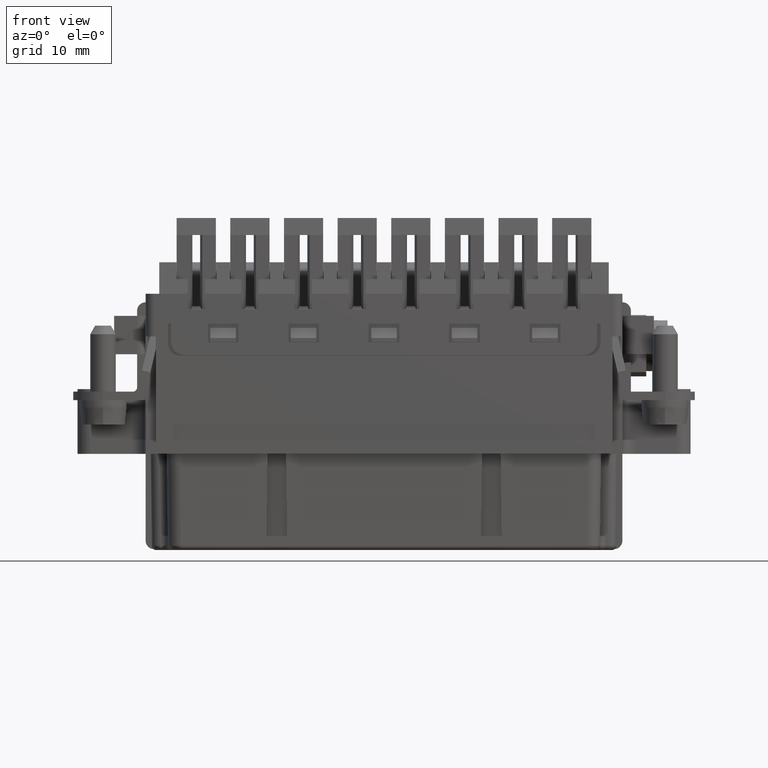
[diagram: clean part render]
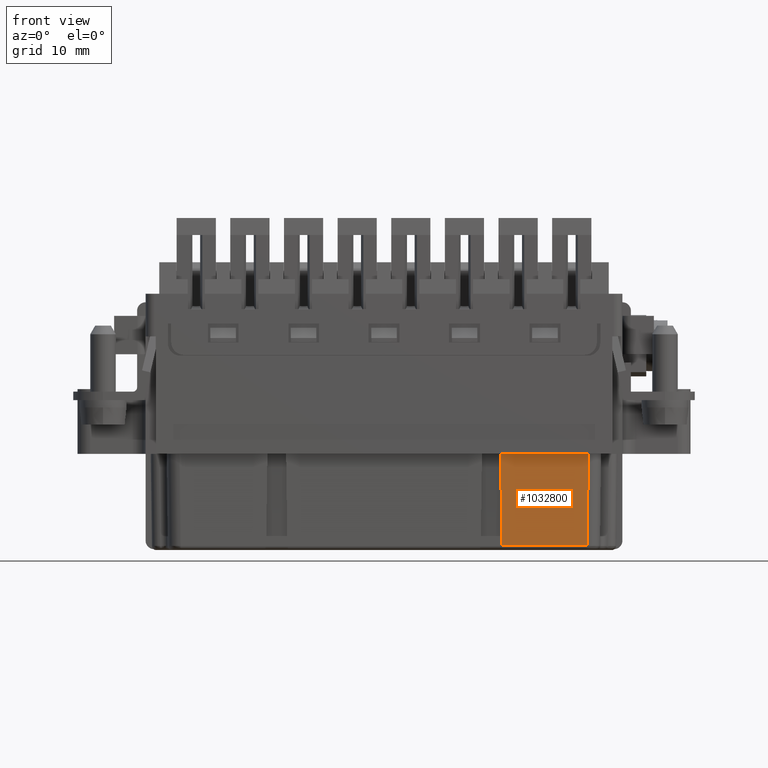
[diagram: same view with one face highlighted and labeled with its STEP entity id]
A machine part, front view. The second image highlights one B-rep face of the part: STEP entity #1032800.
In plain terms, the highlighted planar face has unit normal (0, -0.9999, -0.0131).
Its self-contained STEP definition (entity closure, byte-faithful):
#299760=CARTESIAN_POINT('',(113.245780508494,44.7836120000009,-7.6));
#299770=VERTEX_POINT('',#299760);
#299800=CARTESIAN_POINT('',(0.,44.7836120000009,-7.6));
#299810=DIRECTION('',(-1.,0.,0.));
#299820=VECTOR('',#299810,1.);
#299830=LINE('',#299800,#299820);
#299840=CARTESIAN_POINT('',(102.945652,44.7836120000009,-7.6));
#299850=VERTEX_POINT('',#299840);
#299860=EDGE_CURVE('',#299770,#299850,#299830,.T.);
#1022530=CARTESIAN_POINT('',(25.3819399999999,44.7836120000009,
-7.59999999999998));
#1022540=DIRECTION('',(0.,-0.999914327574007,-0.0130895955713444));
#1022550=DIRECTION('',(1.,0.,0.));
#1022560=AXIS2_PLACEMENT_3D('',#1022530,#1022540,#1022550);
#1022570=PLANE('',#1022560);
#1026930=CARTESIAN_POINT('',(103.087117420612,44.9250774206133,
-18.4065447977857));
#1026940=VERTEX_POINT('',#1026930);
#1027210=CARTESIAN_POINT('',(25.3819399999999,44.9250774206133,
-18.4065447977857));
#1027220=DIRECTION('',(1.,0.,0.));
#1027230=VECTOR('',#1027220,1.);
#1027240=LINE('',#1027210,#1027230);
#1027250=CARTESIAN_POINT('',(113.104315087862,44.9250774206133,
-18.4065447977857));
#1027260=VERTEX_POINT('',#1027250);
#1027270=EDGE_CURVE('',#1026940,#1027260,#1027240,.T.);
#1032520=CARTESIAN_POINT('',(102.611838714337,44.4497987143376,17.9));
#1032530=DIRECTION('',(-0.0130884743460528,-0.0130884743460528,
0.999828677163536));
#1032540=VECTOR('',#1032530,1.);
#1032550=LINE('',#1032520,#1032540);
#1032560=EDGE_CURVE('',#1026940,#299850,#1032550,.T.);
#1032690=ORIENTED_EDGE('',*,*,#299860,.T.);
#1032700=CARTESIAN_POINT('',(113.579336765849,44.4500557426262,
17.880365606643));
#1032710=DIRECTION('',(-0.0130884743460528,0.0130884743460528,
-0.999828677163536));
#1032720=VECTOR('',#1032710,1.);
#1032730=LINE('',#1032700,#1032720);
#1032740=EDGE_CURVE('',#299770,#1027260,#1032730,.T.);
#1032750=ORIENTED_EDGE('',*,*,#1032740,.F.);
#1032760=ORIENTED_EDGE('',*,*,#1027270,.T.);
#1032770=ORIENTED_EDGE('',*,*,#1032560,.F.);
#1032780=EDGE_LOOP('',(#1032770,#1032760,#1032750,#1032690));
#1032790=FACE_OUTER_BOUND('',#1032780,.T.);
#1032800=ADVANCED_FACE('',(#1032790),#1022570,.T.);